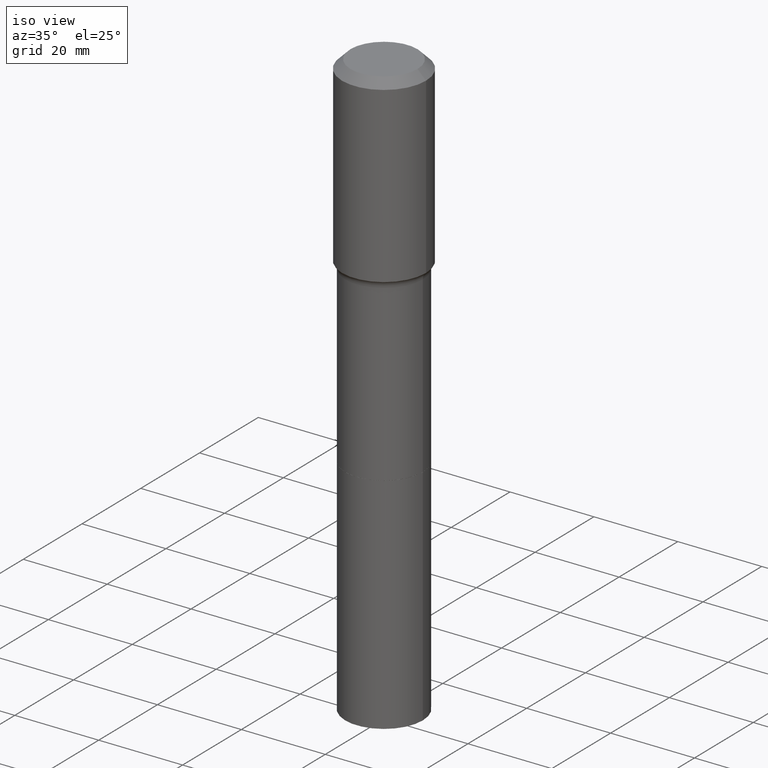
[diagram: clean part render]
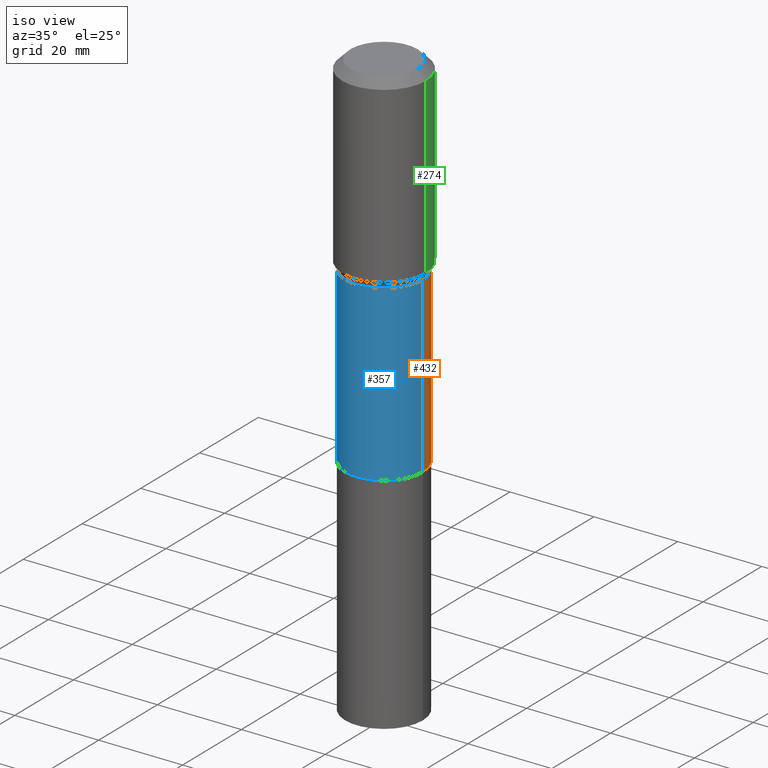
[diagram: same view with three faces highlighted in distinct colors, each labeled with its STEP entity id]
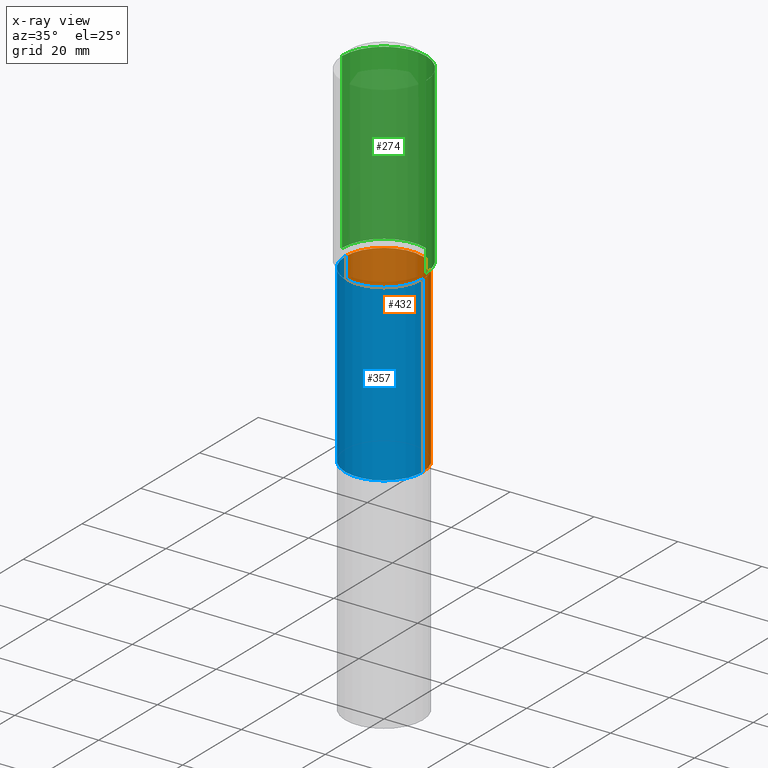
[diagram: x-ray of the same camera — body ghosted, the three highlighted faces saturated]
A machine part, iso view with three faces highlighted in distinct colors.
The next image is the same camera in x-ray (body ghosted, the three faces saturated) — at least one of them is partly hidden behind the body in this view.
Their STEP definitions:

[orange] entity #432 — the highlighted cylindrical surface (partial cylindrical patch) has radius 9.2494 mm, axis along (-0, 0, 1).
#1 = VERTEX_POINT ( 'NONE', #82 ) ;
#3 = ORIENTED_EDGE ( 'NONE', *, *, #448, .F. ) ;
#13 = AXIS2_PLACEMENT_3D ( 'NONE', #390, #194, #277 ) ;
#14 = AXIS2_PLACEMENT_3D ( 'NONE', #272, #24, #96 ) ;
#22 = AXIS2_PLACEMENT_3D ( 'NONE', #411, #295, #164 ) ;
#24 = DIRECTION ( 'NONE',  ( -2.445468806185136597E-29, 3.491481338843145583E-15, 1.000000000000000000 ) ) ;
#49 = VERTEX_POINT ( 'NONE', #218 ) ;
#55 = VECTOR ( 'NONE', #371, 39.37007874015748143 ) ;
#67 = DIRECTION ( 'NONE',  ( -2.445468806185136877E-29, 3.491481338843145188E-15, 1.000000000000000000 ) ) ;
#82 = CARTESIAN_POINT ( 'NONE',  ( -0.3641499999999998072, -6.450432647392020023E-15, -1.771800000000000042 ) ) ;
#96 = DIRECTION ( 'NONE',  ( 1.000000000000000000, -6.982962677686263555E-15, 0.000000000000000000 ) ) ;
#111 = FACE_OUTER_BOUND ( 'NONE', #119, .T. ) ;
#119 = EDGE_LOOP ( 'NONE', ( #465, #160, #392, #3 ) ) ;
#124 = CARTESIAN_POINT ( 'NONE',  ( 0.3641499999999998627, -2.542845859079452817E-15, 1.775659772906089126E-29 ) ) ;
#151 = LINE ( 'NONE', #311, #373 ) ;
#160 = ORIENTED_EDGE ( 'NONE', *, *, #434, .T. ) ;
#164 = DIRECTION ( 'NONE',  ( 1.000000000000000000, -6.982962677686266711E-15, 0.000000000000000000 ) ) ;
#170 = CIRCLE ( 'NONE', #14, 0.3641499999999999737 ) ;
#185 = CIRCLE ( 'NONE', #22, 0.3641499999999998072 ) ;
#194 = DIRECTION ( 'NONE',  ( -2.445468806185136597E-29, 3.491481338843145583E-15, 1.000000000000000000 ) ) ;
#218 = CARTESIAN_POINT ( 'NONE',  ( -0.3641499999999999737, -6.450432647392017657E-15, -3.405299999999999994 ) ) ;
#223 = CARTESIAN_POINT ( 'NONE',  ( 0.3641499999999999737, -1.443238726224201597E-14, -3.405299999999999994 ) ) ;
#258 = LINE ( 'NONE', #124, #55 ) ;
#263 = EDGE_CURVE ( 'NONE', #407, #1, #185, .T. ) ;
#272 = CARTESIAN_POINT ( 'NONE',  ( 8.327554925702245883E-29, -1.188954140316256158E-14, -3.405299999999999994 ) ) ;
#277 = DIRECTION ( 'NONE',  ( 1.000000000000000000, -6.982962677686265922E-15, 4.876176775795935232E-29 ) ) ;
#295 = DIRECTION ( 'NONE',  ( -2.445468806185136597E-29, 3.491481338843145583E-15, 1.000000000000000000 ) ) ;
#311 = CARTESIAN_POINT ( 'NONE',  ( -0.3641499999999998627, 2.587441372270403851E-15, -1.791230213116323002E-29 ) ) ;
#349 = CYLINDRICAL_SURFACE ( 'NONE', #13, 0.3641499999999998627 ) ;
#360 = VERTEX_POINT ( 'NONE', #223 ) ;
#371 = DIRECTION ( 'NONE',  ( -2.445468806185136877E-29, 3.491481338843145188E-15, 1.000000000000000000 ) ) ;
#373 = VECTOR ( 'NONE', #67, 39.37007874015748143 ) ;
#379 = EDGE_CURVE ( 'NONE', #360, #49, #170, .T. ) ;
#380 = CARTESIAN_POINT ( 'NONE',  ( 0.3641499999999998072, -8.729052495241737410E-15, -1.771800000000000042 ) ) ;
#390 = CARTESIAN_POINT ( 'NONE',  ( 0.000000000000000000, 0.000000000000000000, 0.000000000000000000 ) ) ;
#392 = ORIENTED_EDGE ( 'NONE', *, *, #263, .F. ) ;
#407 = VERTEX_POINT ( 'NONE', #380 ) ;
#411 = CARTESIAN_POINT ( 'NONE',  ( 4.332881630798825211E-29, -6.186206636162284593E-15, -1.771800000000000042 ) ) ;
#432 = ADVANCED_FACE ( 'NONE', ( #111 ), #349, .T. ) ;
#434 = EDGE_CURVE ( 'NONE', #49, #1, #151, .T. ) ;
#448 = EDGE_CURVE ( 'NONE', #360, #407, #258, .T. ) ;
#465 = ORIENTED_EDGE ( 'NONE', *, *, #379, .T. ) ;

[blue] entity #357 — the highlighted cylindrical surface (partial cylindrical patch) has radius 9.2494 mm, axis along (-0, 0, 1).
#1 = VERTEX_POINT ( 'NONE', #82 ) ;
#23 = CARTESIAN_POINT ( 'NONE',  ( 8.327554925702245883E-29, -1.188954140316256158E-14, -3.405299999999999994 ) ) ;
#29 = EDGE_CURVE ( 'NONE', #1, #407, #307, .T. ) ;
#31 = ORIENTED_EDGE ( 'NONE', *, *, #448, .T. ) ;
#49 = VERTEX_POINT ( 'NONE', #218 ) ;
#55 = VECTOR ( 'NONE', #371, 39.37007874015748143 ) ;
#67 = DIRECTION ( 'NONE',  ( -2.445468806185136877E-29, 3.491481338843145188E-15, 1.000000000000000000 ) ) ;
#75 = EDGE_CURVE ( 'NONE', #49, #360, #227, .T. ) ;
#82 = CARTESIAN_POINT ( 'NONE',  ( -0.3641499999999998072, -6.450432647392020023E-15, -1.771800000000000042 ) ) ;
#105 = DIRECTION ( 'NONE',  ( 1.000000000000000000, -6.982962677686265922E-15, 4.876176775795935232E-29 ) ) ;
#124 = CARTESIAN_POINT ( 'NONE',  ( 0.3641499999999998627, -2.542845859079452817E-15, 1.775659772906089126E-29 ) ) ;
#135 = CYLINDRICAL_SURFACE ( 'NONE', #314, 0.3641499999999998627 ) ;
#146 = DIRECTION ( 'NONE',  ( -2.445468806185136597E-29, 3.491481338843145583E-15, 1.000000000000000000 ) ) ;
#151 = LINE ( 'NONE', #311, #373 ) ;
#157 = CARTESIAN_POINT ( 'NONE',  ( 4.332881630798825211E-29, -6.186206636162284593E-15, -1.771800000000000042 ) ) ;
#187 = FACE_OUTER_BOUND ( 'NONE', #285, .T. ) ;
#190 = ORIENTED_EDGE ( 'NONE', *, *, #29, .F. ) ;
#218 = CARTESIAN_POINT ( 'NONE',  ( -0.3641499999999999737, -6.450432647392017657E-15, -3.405299999999999994 ) ) ;
#223 = CARTESIAN_POINT ( 'NONE',  ( 0.3641499999999999737, -1.443238726224201597E-14, -3.405299999999999994 ) ) ;
#227 = CIRCLE ( 'NONE', #313, 0.3641499999999999737 ) ;
#246 = ORIENTED_EDGE ( 'NONE', *, *, #75, .T. ) ;
#256 = DIRECTION ( 'NONE',  ( -2.445468806185136597E-29, 3.491481338843145583E-15, 1.000000000000000000 ) ) ;
#258 = LINE ( 'NONE', #124, #55 ) ;
#285 = EDGE_LOOP ( 'NONE', ( #437, #246, #31, #190 ) ) ;
#301 = DIRECTION ( 'NONE',  ( 1.000000000000000000, -6.982962677686263555E-15, 0.000000000000000000 ) ) ;
#307 = CIRCLE ( 'NONE', #455, 0.3641499999999998072 ) ;
#311 = CARTESIAN_POINT ( 'NONE',  ( -0.3641499999999998627, 2.587441372270403851E-15, -1.791230213116323002E-29 ) ) ;
#313 = AXIS2_PLACEMENT_3D ( 'NONE', #23, #256, #301 ) ;
#314 = AXIS2_PLACEMENT_3D ( 'NONE', #386, #146, #105 ) ;
#317 = DIRECTION ( 'NONE',  ( -2.445468806185136597E-29, 3.491481338843145583E-15, 1.000000000000000000 ) ) ;
#357 = ADVANCED_FACE ( 'NONE', ( #187 ), #135, .T. ) ;
#360 = VERTEX_POINT ( 'NONE', #223 ) ;
#371 = DIRECTION ( 'NONE',  ( -2.445468806185136877E-29, 3.491481338843145188E-15, 1.000000000000000000 ) ) ;
#373 = VECTOR ( 'NONE', #67, 39.37007874015748143 ) ;
#380 = CARTESIAN_POINT ( 'NONE',  ( 0.3641499999999998072, -8.729052495241737410E-15, -1.771800000000000042 ) ) ;
#386 = CARTESIAN_POINT ( 'NONE',  ( 0.000000000000000000, 0.000000000000000000, 0.000000000000000000 ) ) ;
#407 = VERTEX_POINT ( 'NONE', #380 ) ;
#434 = EDGE_CURVE ( 'NONE', #49, #1, #151, .T. ) ;
#437 = ORIENTED_EDGE ( 'NONE', *, *, #434, .F. ) ;
#448 = EDGE_CURVE ( 'NONE', #360, #407, #258, .T. ) ;
#452 = DIRECTION ( 'NONE',  ( 1.000000000000000000, -6.982962677686266711E-15, 0.000000000000000000 ) ) ;
#455 = AXIS2_PLACEMENT_3D ( 'NONE', #157, #317, #452 ) ;

[green] entity #274 — the highlighted cylindrical surface (partial cylindrical patch) has radius 10 mm, axis along (-0, 0, 1).
#47 = VECTOR ( 'NONE', #88, 39.37007874015748143 ) ;
#76 = ORIENTED_EDGE ( 'NONE', *, *, #385, .T. ) ;
#88 = DIRECTION ( 'NONE',  ( -2.445468806185136877E-29, 3.491481338843145188E-15, 1.000000000000000000 ) ) ;
#93 = CARTESIAN_POINT ( 'NONE',  ( 1.925562137990189780E-30, -2.749192406205111123E-16, -0.07874000000000053179 ) ) ;
#106 = ORIENTED_EDGE ( 'NONE', *, *, #202, .F. ) ;
#136 = DIRECTION ( 'NONE',  ( -2.445468806185136877E-29, 3.491481338843145188E-15, 1.000000000000000000 ) ) ;
#145 = VECTOR ( 'NONE', #136, 39.37007874015748143 ) ;
#161 = AXIS2_PLACEMENT_3D ( 'NONE', #253, #220, #372 ) ;
#163 = VERTEX_POINT ( 'NONE', #298 ) ;
#182 = EDGE_CURVE ( 'NONE', #212, #429, #487, .T. ) ;
#202 = EDGE_CURVE ( 'NONE', #358, #212, #261, .T. ) ;
#204 = EDGE_CURVE ( 'NONE', #358, #163, #469, .T. ) ;
#205 = EDGE_LOOP ( 'NONE', ( #480, #76, #229, #106 ) ) ;
#212 = VERTEX_POINT ( 'NONE', #332 ) ;
#213 = FACE_OUTER_BOUND ( 'NONE', #205, .T. ) ;
#220 = DIRECTION ( 'NONE',  ( -2.445468806185136597E-29, 3.491481338843145583E-15, 1.000000000000000000 ) ) ;
#229 = ORIENTED_EDGE ( 'NONE', *, *, #182, .F. ) ;
#247 = DIRECTION ( 'NONE',  ( 1.000000000000000000, -6.982962677686266711E-15, 4.876176775795935793E-29 ) ) ;
#253 = CARTESIAN_POINT ( 'NONE',  ( 4.178324741385413824E-29, -5.965540359899951370E-15, -1.708598666569574487 ) ) ;
#261 = LINE ( 'NONE', #491, #47 ) ;
#274 = ADVANCED_FACE ( 'NONE', ( #213 ), #331, .T. ) ;
#292 = DIRECTION ( 'NONE',  ( 1.000000000000000000, -6.982962677686265922E-15, 0.000000000000000000 ) ) ;
#298 = CARTESIAN_POINT ( 'NONE',  ( -0.3937000000000002164, -3.168133609212435400E-15, -1.708598666569574487 ) ) ;
#328 = AXIS2_PLACEMENT_3D ( 'NONE', #440, #486, #247 ) ;
#331 = CYLINDRICAL_SURFACE ( 'NONE', #328, 0.3937000000000001054 ) ;
#332 = CARTESIAN_POINT ( 'NONE',  ( 0.3937000000000000499, -3.024111646825594378E-15, -0.07874000000000053179 ) ) ;
#358 = VERTEX_POINT ( 'NONE', #427 ) ;
#372 = DIRECTION ( 'NONE',  ( 1.000000000000000000, -6.982962677686266711E-15, 0.000000000000000000 ) ) ;
#374 = AXIS2_PLACEMENT_3D ( 'NONE', #93, #484, #292 ) ;
#381 = CARTESIAN_POINT ( 'NONE',  ( -0.3937000000000001054, 2.797406750687515181E-15, -1.936584745033357016E-29 ) ) ;
#385 = EDGE_CURVE ( 'NONE', #163, #429, #424, .T. ) ;
#424 = LINE ( 'NONE', #381, #145 ) ;
#427 = CARTESIAN_POINT ( 'NONE',  ( 0.3937000000000002164, -8.714732766105035375E-15, -1.708598666569574487 ) ) ;
#429 = VERTEX_POINT ( 'NONE', #511 ) ;
#440 = CARTESIAN_POINT ( 'NONE',  ( 0.000000000000000000, 0.000000000000000000, 0.000000000000000000 ) ) ;
#469 = CIRCLE ( 'NONE', #161, 0.3937000000000002164 ) ;
#480 = ORIENTED_EDGE ( 'NONE', *, *, #204, .T. ) ;
#484 = DIRECTION ( 'NONE',  ( -2.445468806185136597E-29, 3.491481338843145583E-15, 1.000000000000000000 ) ) ;
#486 = DIRECTION ( 'NONE',  ( -2.445468806185136597E-29, 3.491481338843145583E-15, 1.000000000000000000 ) ) ;
#487 = CIRCLE ( 'NONE', #374, 0.3937000000000000499 ) ;
#491 = CARTESIAN_POINT ( 'NONE',  ( 0.3937000000000001054, -2.749192406205084005E-15, 1.919750796630860452E-29 ) ) ;
#511 = CARTESIAN_POINT ( 'NONE',  ( -0.3937000000000000499, -3.228230495727162821E-16, -0.07874000000000053179 ) ) ;